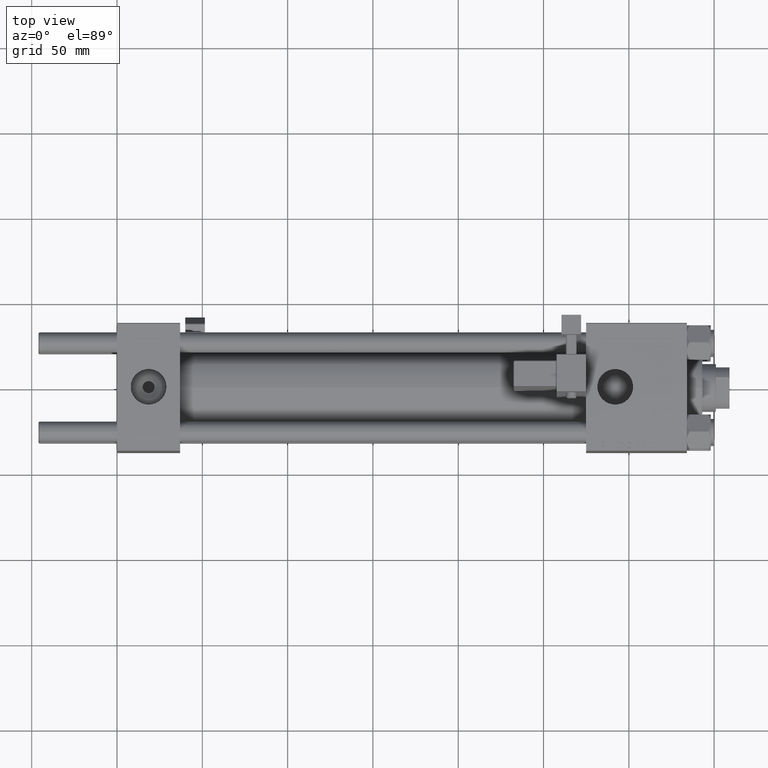
[diagram: clean part render]
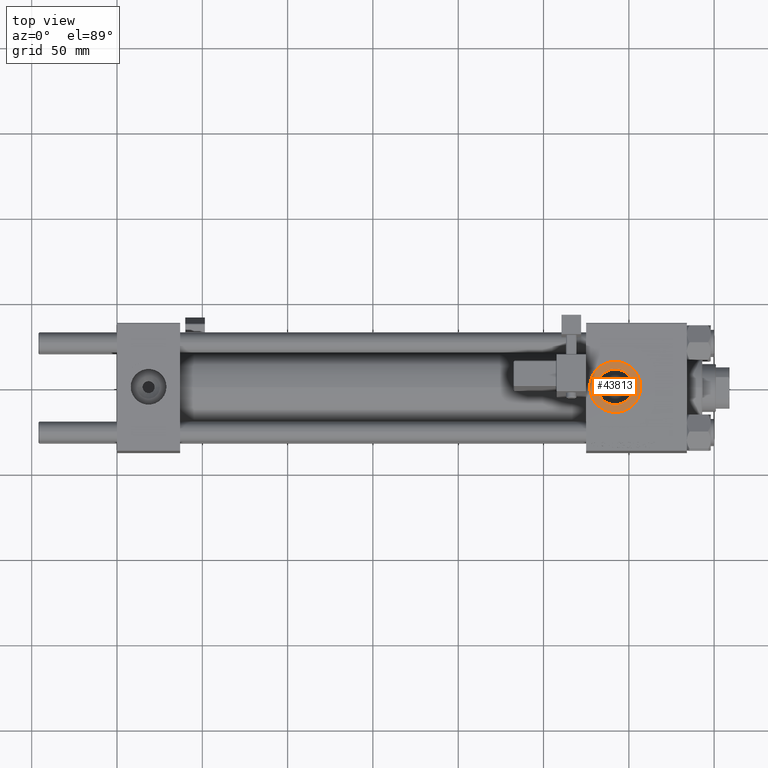
[diagram: same view with one face highlighted and labeled with its STEP entity id]
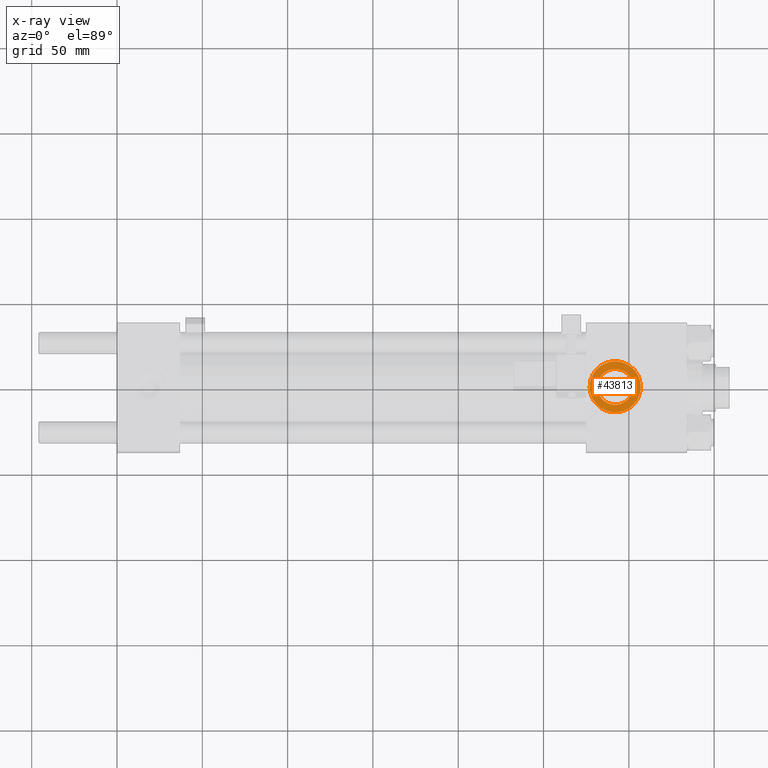
[diagram: x-ray of the same camera — body ghosted, the highlighted face saturated]
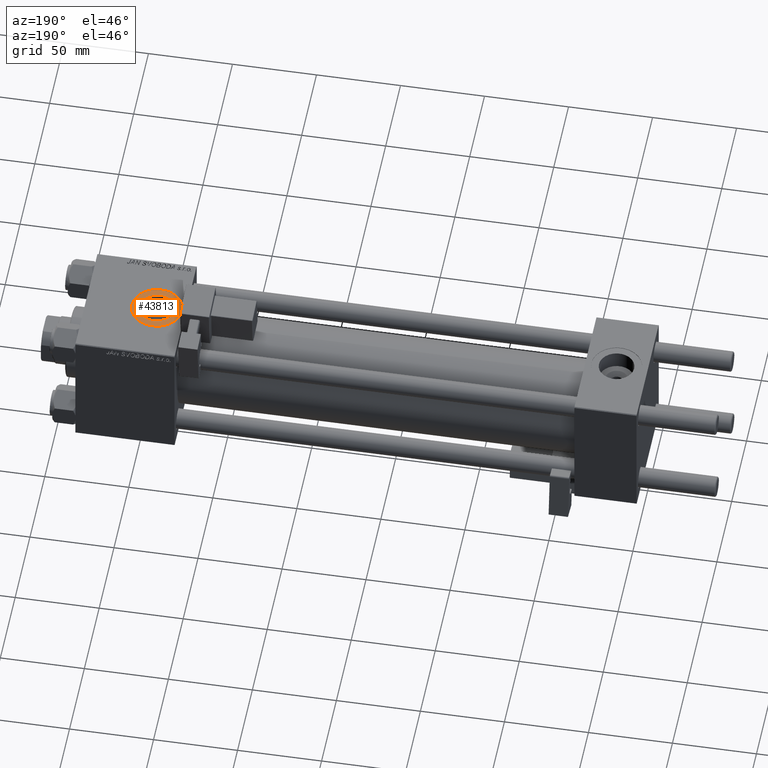
[diagram: same view with one face highlighted and labeled with its STEP entity id]
A machine part, top view. The second image highlights one B-rep face of the part: STEP entity #43813.
The next image is the same camera in x-ray: the body ghosted, the highlighted face saturated — about 0% of this face is hidden behind the body in this view.
A second angle (auxiliary view) of the same face is appended — the face is thin or edge-on in the first view.
In plain terms, the highlighted planar face has unit normal (0, 0, 1).
Its self-contained STEP definition (entity closure, byte-faithful):
#2305 = VERTEX_POINT ( 'NONE', #48834 ) ;
#3458 = AXIS2_PLACEMENT_3D ( 'NONE', #10460, #35291, #15622 ) ;
#4885 = DIRECTION ( 'NONE',  ( 1.000000000000000000, 0.000000000000000000, 0.000000000000000000 ) ) ;
#5187 = EDGE_LOOP ( 'NONE', ( #31719, #41285 ) ) ;
#7600 = DIRECTION ( 'NONE',  ( 1.000000000000000000, 0.000000000000000000, 0.000000000000000000 ) ) ;
#7933 = CIRCLE ( 'NONE', #19278, 15.00000000000001421 ) ;
#8400 = CIRCLE ( 'NONE', #45764, 15.00000000000001421 ) ;
#9153 = DIRECTION ( 'NONE',  ( 0.000000000000000000, 0.000000000000000000, 1.000000000000000000 ) ) ;
#10460 = CARTESIAN_POINT ( 'NONE',  ( 292.0000000000000000, -6.938893903907226011E-15, 37.29999999999998295 ) ) ;
#12230 = DIRECTION ( 'NONE',  ( 0.000000000000000000, 0.000000000000000000, 1.000000000000000000 ) ) ;
#13099 = CIRCLE ( 'NONE', #21822, 10.47999999999998977 ) ;
#14466 = VERTEX_POINT ( 'NONE', #28676 ) ;
#15622 = DIRECTION ( 'NONE',  ( 1.000000000000000000, 0.000000000000000000, -0.000000000000000000 ) ) ;
#16071 = VERTEX_POINT ( 'NONE', #34427 ) ;
#19278 = AXIS2_PLACEMENT_3D ( 'NONE', #37060, #12230, #7600 ) ;
#19939 = DIRECTION ( 'NONE',  ( 1.000000000000000000, 0.000000000000000000, 0.000000000000000000 ) ) ;
#20804 = EDGE_CURVE ( 'NONE', #16071, #14466, #8400, .T. ) ;
#21822 = AXIS2_PLACEMENT_3D ( 'NONE', #41734, #50455, #4885 ) ;
#26794 = VERTEX_POINT ( 'NONE', #49042 ) ;
#28676 = CARTESIAN_POINT ( 'NONE',  ( 307.0000000000000000, -6.938893903907226011E-15, 37.29999999999998295 ) ) ;
#29835 = FACE_OUTER_BOUND ( 'NONE', #5187, .T. ) ;
#31719 = ORIENTED_EDGE ( 'NONE', *, *, #49852, .T. ) ;
#32568 = EDGE_LOOP ( 'NONE', ( #36918, #35058 ) ) ;
#33513 = EDGE_CURVE ( 'NONE', #2305, #26794, #13099, .T. ) ;
#33929 = FACE_BOUND ( 'NONE', #32568, .T. ) ;
#34025 = CIRCLE ( 'NONE', #51490, 10.47999999999998977 ) ;
#34251 = DIRECTION ( 'NONE',  ( 1.000000000000000000, 0.000000000000000000, 0.000000000000000000 ) ) ;
#34427 = CARTESIAN_POINT ( 'NONE',  ( 276.9999999999999432, -5.101923705186191689E-15, 37.29999999999998295 ) ) ;
#34515 = CARTESIAN_POINT ( 'NONE',  ( 292.0000000000000000, -6.938893903907226011E-15, 37.29999999999998295 ) ) ;
#35058 = ORIENTED_EDGE ( 'NONE', *, *, #33513, .T. ) ;
#35291 = DIRECTION ( 'NONE',  ( 0.000000000000000000, 0.000000000000000000, 1.000000000000000000 ) ) ;
#36918 = ORIENTED_EDGE ( 'NONE', *, *, #48872, .T. ) ;
#37060 = CARTESIAN_POINT ( 'NONE',  ( 292.0000000000000000, -6.938893903907226011E-15, 37.29999999999998295 ) ) ;
#40674 = DIRECTION ( 'NONE',  ( -0.000000000000000000, -0.000000000000000000, -1.000000000000000000 ) ) ;
#41285 = ORIENTED_EDGE ( 'NONE', *, *, #20804, .T. ) ;
#41734 = CARTESIAN_POINT ( 'NONE',  ( 292.0000000000000000, -6.938893903907226011E-15, 37.29999999999998295 ) ) ;
#43813 = ADVANCED_FACE ( 'NONE', ( #33929, #29835 ), #46495, .T. ) ;
#45764 = AXIS2_PLACEMENT_3D ( 'NONE', #34515, #9153, #34251 ) ;
#46495 = PLANE ( 'NONE',  #3458 ) ;
#48335 = CARTESIAN_POINT ( 'NONE',  ( 292.0000000000000000, -6.938893903907226011E-15, 37.29999999999998295 ) ) ;
#48834 = CARTESIAN_POINT ( 'NONE',  ( 302.4799999999999613, -5.655464058400802100E-15, 37.29999999999998295 ) ) ;
#48872 = EDGE_CURVE ( 'NONE', #26794, #2305, #34025, .T. ) ;
#49042 = CARTESIAN_POINT ( 'NONE',  ( 281.5199999999999818, -6.938893903907226011E-15, 37.29999999999998295 ) ) ;
#49852 = EDGE_CURVE ( 'NONE', #14466, #16071, #7933, .T. ) ;
#50455 = DIRECTION ( 'NONE',  ( -0.000000000000000000, -0.000000000000000000, -1.000000000000000000 ) ) ;
#51490 = AXIS2_PLACEMENT_3D ( 'NONE', #48335, #40674, #19939 ) ;